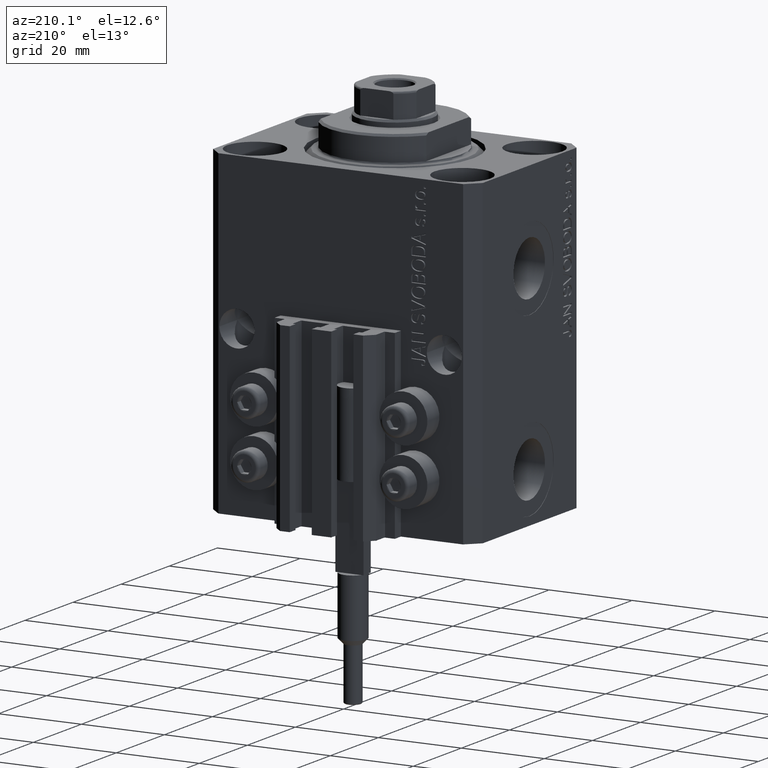
[diagram: clean part render]
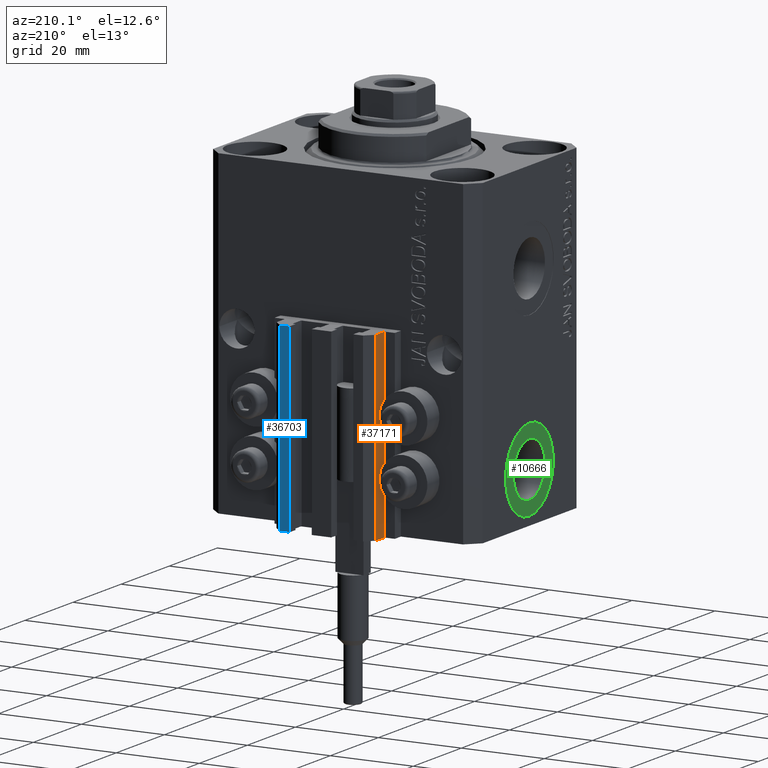
[diagram: same view with three faces highlighted in distinct colors, each labeled with its STEP entity id]
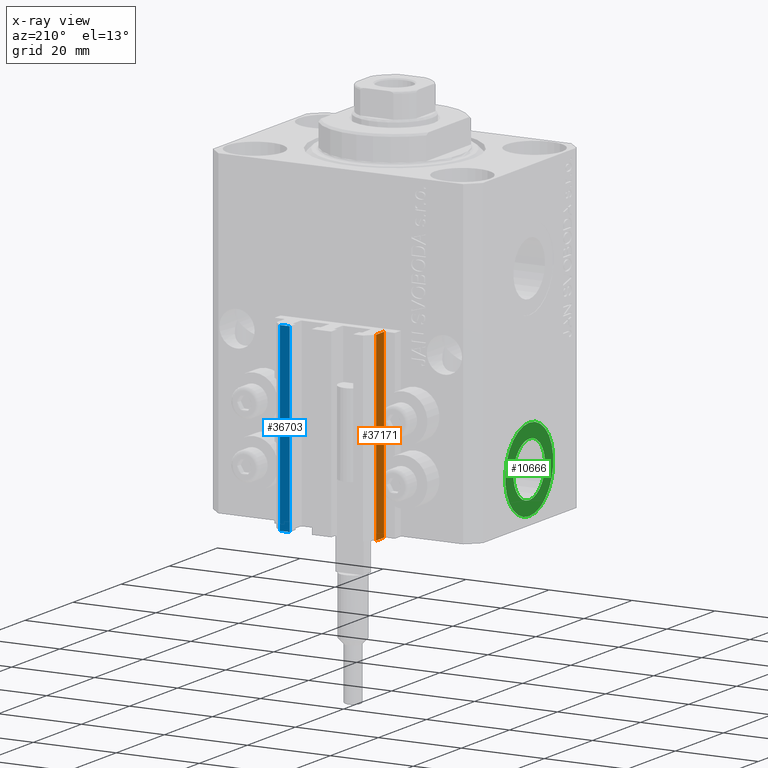
[diagram: x-ray of the same camera — body ghosted, the three highlighted faces saturated]
A machine part, auxiliary view with three faces highlighted in distinct colors.
The next image is the same camera in x-ray (body ghosted, the three faces saturated) — at least one of them is partly hidden behind the body in this view.
Their STEP definitions:

[orange] entity #37171 — the highlighted planar face has unit normal (-1, 0, 0).
#234 = LINE ( 'NONE', #44835, #17682 ) ;
#639 = FACE_OUTER_BOUND ( 'NONE', #4735, .T. ) ;
#2377 = AXIS2_PLACEMENT_3D ( 'NONE', #23415, #8395, #19782 ) ;
#2415 = VECTOR ( 'NONE', #42260, 1000.000000000000000 ) ;
#4735 = EDGE_LOOP ( 'NONE', ( #18247, #28910, #7268, #13722 ) ) ;
#7268 = ORIENTED_EDGE ( 'NONE', *, *, #35136, .T. ) ;
#7277 = VECTOR ( 'NONE', #11604, 1000.000000000000000 ) ;
#7335 = CARTESIAN_POINT ( 'NONE',  ( -12.00000000000000000, 28.49999999999948841, -77.00000000000000000 ) ) ;
#7945 = VERTEX_POINT ( 'NONE', #18931 ) ;
#8395 = DIRECTION ( 'NONE',  ( -1.000000000000000000, 0.000000000000000000, 0.000000000000000000 ) ) ;
#11604 = DIRECTION ( 'NONE',  ( 0.000000000000000000, 0.000000000000000000, 1.000000000000000000 ) ) ;
#12089 = LINE ( 'NONE', #38260, #7277 ) ;
#12699 = LINE ( 'NONE', #27482, #2415 ) ;
#13722 = ORIENTED_EDGE ( 'NONE', *, *, #33976, .T. ) ;
#17682 = VECTOR ( 'NONE', #29812, 1000.000000000000000 ) ;
#18247 = ORIENTED_EDGE ( 'NONE', *, *, #28108, .F. ) ;
#18931 = CARTESIAN_POINT ( 'NONE',  ( -12.00000000000000000, 28.49999999999948841, -33.00000000000000000 ) ) ;
#19782 = DIRECTION ( 'NONE',  ( 0.000000000000000000, 0.000000000000000000, 1.000000000000000000 ) ) ;
#20988 = VERTEX_POINT ( 'NONE', #7335 ) ;
#23271 = VECTOR ( 'NONE', #38908, 1000.000000000000000 ) ;
#23415 = CARTESIAN_POINT ( 'NONE',  ( -12.00000000000000000, 28.49999999999948841, -77.00000000000000000 ) ) ;
#25629 = VERTEX_POINT ( 'NONE', #34447 ) ;
#27482 = CARTESIAN_POINT ( 'NONE',  ( -12.00000000000000000, 28.49999999999948841, -77.00000000000000000 ) ) ;
#27772 = CARTESIAN_POINT ( 'NONE',  ( -12.00000000000000000, 25.19999999999949125, -77.00000000000000000 ) ) ;
#28108 = EDGE_CURVE ( 'NONE', #7945, #25629, #234, .T. ) ;
#28910 = ORIENTED_EDGE ( 'NONE', *, *, #44623, .F. ) ;
#29812 = DIRECTION ( 'NONE',  ( 0.000000000000000000, -1.000000000000000000, 0.000000000000000000 ) ) ;
#30209 = PLANE ( 'NONE',  #2377 ) ;
#32176 = CARTESIAN_POINT ( 'NONE',  ( -12.00000000000000000, 25.19999999999949125, -77.00000000000000000 ) ) ;
#33976 = EDGE_CURVE ( 'NONE', #40430, #25629, #46677, .T. ) ;
#34447 = CARTESIAN_POINT ( 'NONE',  ( -12.00000000000000000, 25.19999999999949125, -33.00000000000000000 ) ) ;
#35136 = EDGE_CURVE ( 'NONE', #20988, #40430, #12699, .T. ) ;
#37171 = ADVANCED_FACE ( 'NONE', ( #639 ), #30209, .T. ) ;
#38260 = CARTESIAN_POINT ( 'NONE',  ( -12.00000000000000000, 28.49999999999948841, -77.00000000000000000 ) ) ;
#38908 = DIRECTION ( 'NONE',  ( 0.000000000000000000, 0.000000000000000000, 1.000000000000000000 ) ) ;
#40430 = VERTEX_POINT ( 'NONE', #32176 ) ;
#42260 = DIRECTION ( 'NONE',  ( 0.000000000000000000, -1.000000000000000000, 0.000000000000000000 ) ) ;
#44623 = EDGE_CURVE ( 'NONE', #20988, #7945, #12089, .T. ) ;
#44835 = CARTESIAN_POINT ( 'NONE',  ( -12.00000000000000000, 28.49999999999948841, -33.00000000000000000 ) ) ;
#46677 = LINE ( 'NONE', #27772, #23271 ) ;

[blue] entity #36703 — the highlighted planar face has unit normal (-0, 1, 0).
#1243 = VECTOR ( 'NONE', #13803, 1000.000000000000000 ) ;
#2551 = EDGE_CURVE ( 'NONE', #40257, #35964, #22549, .T. ) ;
#5097 = DIRECTION ( 'NONE',  ( -1.000000000000000000, -1.476360405086644852E-15, 0.000000000000000000 ) ) ;
#5398 = ORIENTED_EDGE ( 'NONE', *, *, #30925, .F. ) ;
#7584 = EDGE_CURVE ( 'NONE', #27689, #15319, #9282, .T. ) ;
#8114 = EDGE_LOOP ( 'NONE', ( #10786, #5398, #25755, #17541 ) ) ;
#9282 = LINE ( 'NONE', #34729, #1243 ) ;
#10786 = ORIENTED_EDGE ( 'NONE', *, *, #7584, .F. ) ;
#13460 = VECTOR ( 'NONE', #5097, 1000.000000000000000 ) ;
#13803 = DIRECTION ( 'NONE',  ( -1.000000000000000000, -1.476360405086644852E-15, 0.000000000000000000 ) ) ;
#14762 = FACE_OUTER_BOUND ( 'NONE', #8114, .T. ) ;
#14770 = CARTESIAN_POINT ( 'NONE',  ( 9.999999999999994671, 30.49999999999949551, -77.00000000000000000 ) ) ;
#15319 = VERTEX_POINT ( 'NONE', #31267 ) ;
#17541 = ORIENTED_EDGE ( 'NONE', *, *, #31094, .T. ) ;
#21081 = DIRECTION ( 'NONE',  ( 0.000000000000000000, 0.000000000000000000, 1.000000000000000000 ) ) ;
#21551 = DIRECTION ( 'NONE',  ( -1.000000000000000000, -1.476360405086644852E-15, 0.000000000000000000 ) ) ;
#22549 = LINE ( 'NONE', #37808, #13460 ) ;
#22638 = CARTESIAN_POINT ( 'NONE',  ( 9.999999999999994671, 30.49999999999949551, -33.00000000000000000 ) ) ;
#25755 = ORIENTED_EDGE ( 'NONE', *, *, #2551, .T. ) ;
#27115 = DIRECTION ( 'NONE',  ( 0.000000000000000000, 0.000000000000000000, 1.000000000000000000 ) ) ;
#27689 = VERTEX_POINT ( 'NONE', #22638 ) ;
#29546 = PLANE ( 'NONE',  #33403 ) ;
#30161 = VECTOR ( 'NONE', #27115, 1000.000000000000000 ) ;
#30925 = EDGE_CURVE ( 'NONE', #40257, #27689, #44091, .T. ) ;
#31094 = EDGE_CURVE ( 'NONE', #35964, #15319, #46511, .T. ) ;
#31267 = CARTESIAN_POINT ( 'NONE',  ( 7.649999999999995026, 30.49999999999949196, -33.00000000000000000 ) ) ;
#33403 = AXIS2_PLACEMENT_3D ( 'NONE', #37282, #44312, #21551 ) ;
#34729 = CARTESIAN_POINT ( 'NONE',  ( 9.999999999999994671, 30.49999999999949551, -33.00000000000000000 ) ) ;
#35772 = CARTESIAN_POINT ( 'NONE',  ( 7.649999999999995026, 30.49999999999949196, -77.00000000000000000 ) ) ;
#35964 = VERTEX_POINT ( 'NONE', #35772 ) ;
#36703 = ADVANCED_FACE ( 'NONE', ( #14762 ), #29546, .T. ) ;
#37282 = CARTESIAN_POINT ( 'NONE',  ( 9.999999999999994671, 30.49999999999949551, -77.00000000000000000 ) ) ;
#37808 = CARTESIAN_POINT ( 'NONE',  ( 9.999999999999994671, 30.49999999999949551, -77.00000000000000000 ) ) ;
#40257 = VERTEX_POINT ( 'NONE', #41885 ) ;
#41885 = CARTESIAN_POINT ( 'NONE',  ( 9.999999999999994671, 30.49999999999949551, -77.00000000000000000 ) ) ;
#41901 = CARTESIAN_POINT ( 'NONE',  ( 7.649999999999995026, 30.49999999999949196, -77.00000000000000000 ) ) ;
#44091 = LINE ( 'NONE', #14770, #44862 ) ;
#44312 = DIRECTION ( 'NONE',  ( -1.476360405086644852E-15, 1.000000000000000000, 0.000000000000000000 ) ) ;
#44862 = VECTOR ( 'NONE', #21081, 1000.000000000000000 ) ;
#46511 = LINE ( 'NONE', #41901, #30161 ) ;

[green] entity #10666 — the highlighted planar face has unit normal (-1, 0, 0).
#272 = DIRECTION ( 'NONE',  ( 0.000000000000000000, 0.000000000000000000, 1.000000000000000000 ) ) ;
#1593 = CIRCLE ( 'NONE', #44225, 9.999999999999994671 ) ;
#2065 = PLANE ( 'NONE',  #3640 ) ;
#2210 = DIRECTION ( 'NONE',  ( -1.000000000000000000, 0.000000000000000000, 0.000000000000000000 ) ) ;
#3640 = AXIS2_PLACEMENT_3D ( 'NONE', #9104, #42544, #23881 ) ;
#4816 = CARTESIAN_POINT ( 'NONE',  ( -32.39999999999650271, -6.938893903907228378E-15, -65.00000000000000000 ) ) ;
#5042 = ORIENTED_EDGE ( 'NONE', *, *, #31735, .F. ) ;
#5431 = VERTEX_POINT ( 'NONE', #40473 ) ;
#9104 = CARTESIAN_POINT ( 'NONE',  ( -32.39999999999650271, -6.938893903907228378E-15, -65.00000000000000000 ) ) ;
#9806 = FACE_OUTER_BOUND ( 'NONE', #19634, .T. ) ;
#10666 = ADVANCED_FACE ( 'NONE', ( #42300, #9806 ), #2065, .T. ) ;
#11934 = EDGE_CURVE ( 'NONE', #14372, #16185, #13761, .T. ) ;
#12202 = AXIS2_PLACEMENT_3D ( 'NONE', #40747, #23289, #272 ) ;
#12330 = DIRECTION ( 'NONE',  ( 0.000000000000000000, 0.000000000000000000, 1.000000000000000000 ) ) ;
#13761 = CIRCLE ( 'NONE', #12202, 9.999999999999994671 ) ;
#13912 = CIRCLE ( 'NONE', #28608, 6.580000000000002736 ) ;
#14372 = VERTEX_POINT ( 'NONE', #36358 ) ;
#14908 = VERTEX_POINT ( 'NONE', #41979 ) ;
#14951 = CARTESIAN_POINT ( 'NONE',  ( -32.39999999999650271, -6.938893903907228378E-15, -65.00000000000000000 ) ) ;
#16185 = VERTEX_POINT ( 'NONE', #27827 ) ;
#17009 = DIRECTION ( 'NONE',  ( 0.000000000000000000, 0.000000000000000000, 1.000000000000000000 ) ) ;
#19634 = EDGE_LOOP ( 'NONE', ( #38288, #21886 ) ) ;
#19653 = EDGE_CURVE ( 'NONE', #14908, #5431, #47196, .T. ) ;
#21886 = ORIENTED_EDGE ( 'NONE', *, *, #36851, .T. ) ;
#23289 = DIRECTION ( 'NONE',  ( -1.000000000000000000, 0.000000000000000000, 0.000000000000000000 ) ) ;
#23881 = DIRECTION ( 'NONE',  ( 0.000000000000000000, 0.000000000000000000, 1.000000000000000000 ) ) ;
#23934 = AXIS2_PLACEMENT_3D ( 'NONE', #14951, #45237, #25842 ) ;
#25842 = DIRECTION ( 'NONE',  ( 0.000000000000000000, 0.000000000000000000, 1.000000000000000000 ) ) ;
#27827 = CARTESIAN_POINT ( 'NONE',  ( -32.39999999999650271, -5.714247104759875318E-15, -75.00000000000000000 ) ) ;
#28608 = AXIS2_PLACEMENT_3D ( 'NONE', #39513, #2210, #17009 ) ;
#31735 = EDGE_CURVE ( 'NONE', #5431, #14908, #13912, .T. ) ;
#36358 = CARTESIAN_POINT ( 'NONE',  ( -32.39999999999650271, -6.938893903907228378E-15, -55.00000000000000711 ) ) ;
#36851 = EDGE_CURVE ( 'NONE', #16185, #14372, #1593, .T. ) ;
#38288 = ORIENTED_EDGE ( 'NONE', *, *, #11934, .T. ) ;
#38449 = ORIENTED_EDGE ( 'NONE', *, *, #19653, .F. ) ;
#39513 = CARTESIAN_POINT ( 'NONE',  ( -32.39999999999650271, -6.938893903907228378E-15, -65.00000000000000000 ) ) ;
#40473 = CARTESIAN_POINT ( 'NONE',  ( -32.39999999999650271, -6.938893903907228378E-15, -58.42000000000000171 ) ) ;
#40747 = CARTESIAN_POINT ( 'NONE',  ( -32.39999999999650271, -6.938893903907228378E-15, -65.00000000000000000 ) ) ;
#41373 = EDGE_LOOP ( 'NONE', ( #5042, #38449 ) ) ;
#41979 = CARTESIAN_POINT ( 'NONE',  ( -32.39999999999650271, -6.133076310068269336E-15, -71.57999999999999829 ) ) ;
#42300 = FACE_BOUND ( 'NONE', #41373, .T. ) ;
#42544 = DIRECTION ( 'NONE',  ( -1.000000000000000000, 0.000000000000000000, 0.000000000000000000 ) ) ;
#44225 = AXIS2_PLACEMENT_3D ( 'NONE', #4816, #46023, #12330 ) ;
#45237 = DIRECTION ( 'NONE',  ( -1.000000000000000000, 0.000000000000000000, 0.000000000000000000 ) ) ;
#46023 = DIRECTION ( 'NONE',  ( -1.000000000000000000, 0.000000000000000000, 0.000000000000000000 ) ) ;
#47196 = CIRCLE ( 'NONE', #23934, 6.580000000000002736 ) ;